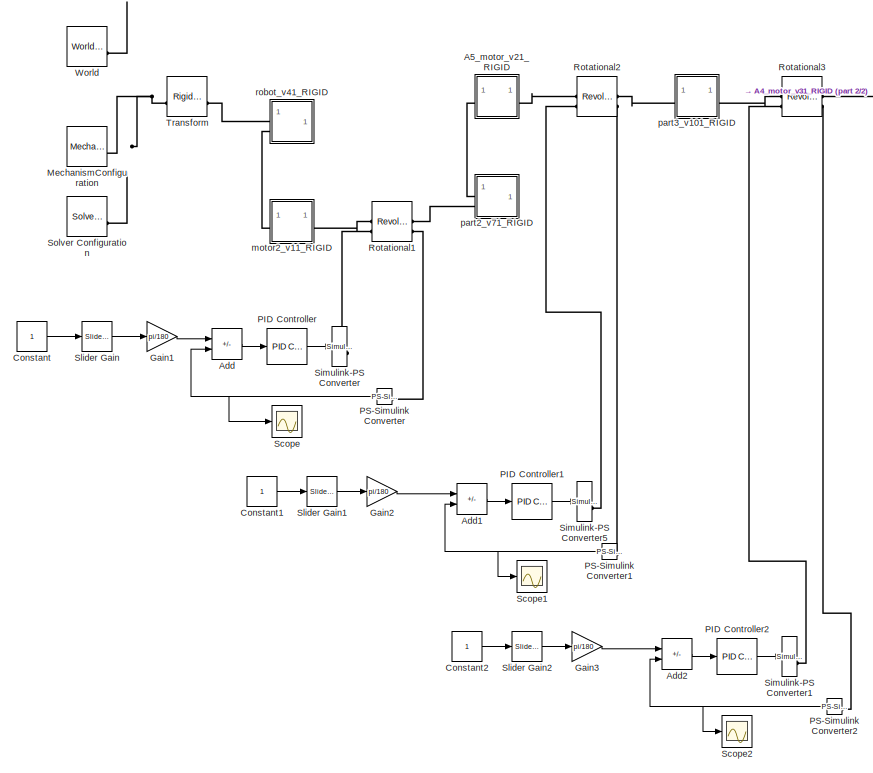
[diagram: root canvas - part 1/2, left side, full height]
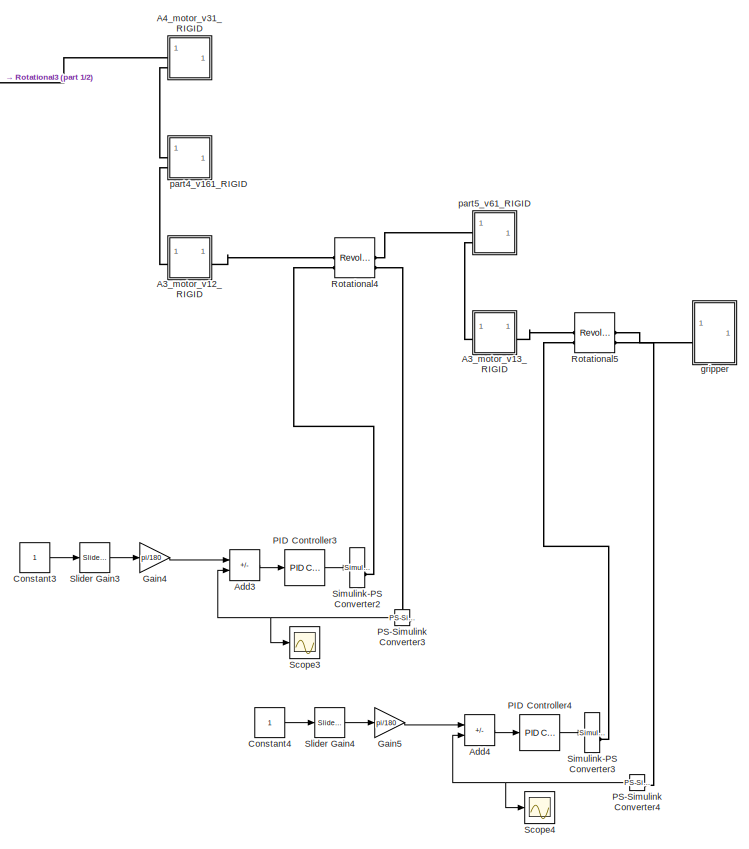
[diagram: root canvas - part 2/2, right side, full height]
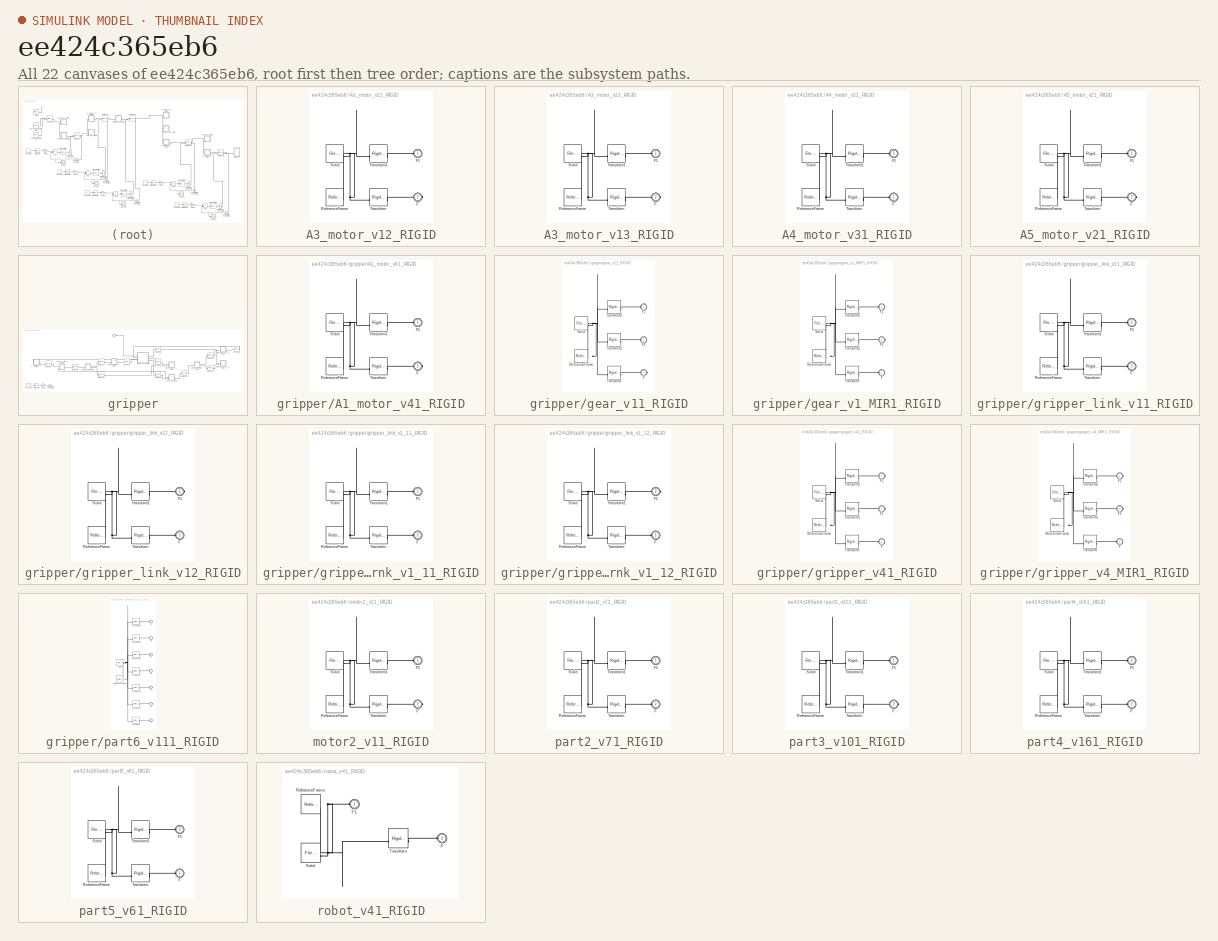
[diagram: thumbnail index - all 22 canvases of the model, root first then tree order]
MODEL slx_ee424c365eb6
KIND model
CONFIG AbsTol = auto
CONFIG EnableMultiTasking = off
CONFIG FixedStep = auto
CONFIG MaxStep = auto
CONFIG MinStep = auto
CONFIG RelTol = 1e-3
CONFIG SampleTimeConstraint = Unconstrained
CONFIG SolverName = VariableStepAuto
CONFIG StartFcn = 1
CONFIG StartTime = 0.0
CONFIG StopTime = inf
WORKSPACE source: external: MATLAB File  (data not in archive)
BLOCK [SubSystem] A3_motor_v12_RIGID
BLOCK [PMIOPort] A3_motor_v12_RIGID/F
  Port = 2
  Side = Right
BLOCK [PMIOPort] A3_motor_v12_RIGID/F1
  Side = Left
BLOCK [Reference] A3_motor_v12_RIGID/ReferenceFrame  REF=sm_lib/Frames and
Transforms/Reference
Frame
  SourceBlock = sm_lib/Frames and\nTransforms/Reference\nFrame
  SourceType = Reference\nFrame
BLOCK [Reference] A3_motor_v12_RIGID/Solid  REF=sm_lib/Body Elements/File Solid
  SourceBlock = sm_lib/Body Elements/File Solid
  SourceType = File Solid
BLOCK [Reference] A3_motor_v12_RIGID/Transform  REF=sm_lib/Frames and
Transforms/Rigid
Transform
  SourceBlock = sm_lib/Frames and\nTransforms/Rigid\nTransform
  SourceType = Rigid\nTransform
BLOCK [Reference] A3_motor_v12_RIGID/Transform1  REF=sm_lib/Frames and
Transforms/Rigid
Transform
  SourceBlock = sm_lib/Frames and\nTransforms/Rigid\nTransform
  SourceType = Rigid\nTransform
BLOCK [SubSystem] A3_motor_v13_RIGID
BLOCK [PMIOPort] A3_motor_v13_RIGID/F
  Port = 2
  Side = Right
BLOCK [PMIOPort] A3_motor_v13_RIGID/F1
  Side = Left
BLOCK [Reference] A3_motor_v13_RIGID/ReferenceFrame  REF=sm_lib/Frames and
Transforms/Reference
Frame
  SourceBlock = sm_lib/Frames and\nTransforms/Reference\nFrame
  SourceType = Reference\nFrame
BLOCK [Reference] A3_motor_v13_RIGID/Solid  REF=sm_lib/Body Elements/File Solid
  SourceBlock = sm_lib/Body Elements/File Solid
  SourceType = File Solid
BLOCK [Reference] A3_motor_v13_RIGID/Transform  REF=sm_lib/Frames and
Transforms/Rigid
Transform
  SourceBlock = sm_lib/Frames and\nTransforms/Rigid\nTransform
  SourceType = Rigid\nTransform
BLOCK [Reference] A3_motor_v13_RIGID/Transform1  REF=sm_lib/Frames and
Transforms/Rigid
Transform
  SourceBlock = sm_lib/Frames and\nTransforms/Rigid\nTransform
  SourceType = Rigid\nTransform
BLOCK [SubSystem] A4_motor_v31_RIGID
BLOCK [PMIOPort] A4_motor_v31_RIGID/F
  Side = Left
BLOCK [PMIOPort] A4_motor_v31_RIGID/F1
  Port = 2
  Side = Left
BLOCK [Reference] A4_motor_v31_RIGID/ReferenceFrame  REF=sm_lib/Frames and
Transforms/Reference
Frame
  SourceBlock = sm_lib/Frames and\nTransforms/Reference\nFrame
  SourceType = Reference\nFrame
BLOCK [Reference] A4_motor_v31_RIGID/Solid  REF=sm_lib/Body Elements/File Solid
  SourceBlock = sm_lib/Body Elements/File Solid
  SourceType = File Solid
BLOCK [Reference] A4_motor_v31_RIGID/Transform  REF=sm_lib/Frames and
Transforms/Rigid
Transform
  SourceBlock = sm_lib/Frames and\nTransforms/Rigid\nTransform
  SourceType = Rigid\nTransform
BLOCK [Reference] A4_motor_v31_RIGID/Transform1  REF=sm_lib/Frames and
Transforms/Rigid
Transform
  SourceBlock = sm_lib/Frames and\nTransforms/Rigid\nTransform
  SourceType = Rigid\nTransform
BLOCK [SubSystem] A5_motor_v21_RIGID
BLOCK [PMIOPort] A5_motor_v21_RIGID/F
  Port = 2
  Side = Right
BLOCK [PMIOPort] A5_motor_v21_RIGID/F1
  Side = Left
BLOCK [Reference] A5_motor_v21_RIGID/ReferenceFrame  REF=sm_lib/Frames and
Transforms/Reference
Frame
  SourceBlock = sm_lib/Frames and\nTransforms/Reference\nFrame
  SourceType = Reference\nFrame
BLOCK [Reference] A5_motor_v21_RIGID/Solid  REF=sm_lib/Body Elements/File Solid
  SourceBlock = sm_lib/Body Elements/File Solid
  SourceType = File Solid
BLOCK [Reference] A5_motor_v21_RIGID/Transform  REF=sm_lib/Frames and
Transforms/Rigid
Transform
  SourceBlock = sm_lib/Frames and\nTransforms/Rigid\nTransform
  SourceType = Rigid\nTransform
BLOCK [Reference] A5_motor_v21_RIGID/Transform1  REF=sm_lib/Frames and
Transforms/Rigid
Transform
  SourceBlock = sm_lib/Frames and\nTransforms/Rigid\nTransform
  SourceType = Rigid\nTransform
BLOCK [Sum] Add
  IconShape = rectangular
  Inputs = +-
BLOCK [Sum] Add1
  IconShape = rectangular
  Inputs = +-
BLOCK [Sum] Add2
  IconShape = rectangular
  Inputs = +-
BLOCK [Sum] Add3
  IconShape = rectangular
  Inputs = +-
BLOCK [Sum] Add4
  IconShape = rectangular
  Inputs = +-
BLOCK [Constant] Constant
BLOCK [Constant] Constant1
BLOCK [Constant] Constant2
BLOCK [Constant] Constant3
BLOCK [Constant] Constant4
BLOCK [Gain] Gain1
  Gain = pi/180
BLOCK [Gain] Gain2
  Gain = pi/180
BLOCK [Gain] Gain3
  Gain = pi/180
BLOCK [Gain] Gain4
  Gain = pi/180
BLOCK [Gain] Gain5
  Gain = pi/180
BLOCK [Reference] MechanismConfiguration  REF=sm_lib/Utilities/Mechanism
Configuration
  SourceBlock = sm_lib/Utilities/Mechanism\nConfiguration
  SourceType = Mechanism\nConfiguration
BLOCK [Reference] PID Controller  REF=slpidlib/PID Controller
  LibrarySourceBlock = simulink/Continuous/PID Controller
  SourceBlock = slpidlib/PID Controller
  SourceType = PID 1dof
BLOCK [Reference] PID Controller1  REF=slpidlib/PID Controller
  LibrarySourceBlock = simulink/Continuous/PID Controller
  SourceBlock = slpidlib/PID Controller
  SourceType = PID 1dof
BLOCK [Reference] PID Controller2  REF=slpidlib/PID Controller
  LibrarySourceBlock = simulink/Continuous/PID Controller
  SourceBlock = slpidlib/PID Controller
  SourceType = PID 1dof
BLOCK [Reference] PID Controller3  REF=slpidlib/PID Controller
  LibrarySourceBlock = simulink/Continuous/PID Controller
  SourceBlock = slpidlib/PID Controller
  SourceType = PID 1dof
BLOCK [Reference] PID Controller4  REF=slpidlib/PID Controller
  LibrarySourceBlock = simulink/Continuous/PID Controller
  SourceBlock = slpidlib/PID Controller
  SourceType = PID 1dof
BLOCK [Reference] PS-Simulink Converter  REF=nesl_utility/PS-Simulink
Converter
  SourceBlock = nesl_utility/PS-Simulink\nConverter
  SourceType = PS-Simulink\nConverter
BLOCK [Reference] PS-Simulink Converter1  REF=nesl_utility/PS-Simulink
Converter
  SourceBlock = nesl_utility/PS-Simulink\nConverter
  SourceType = PS-Simulink\nConverter
BLOCK [Reference] PS-Simulink Converter2  REF=nesl_utility/PS-Simulink
Converter
  SourceBlock = nesl_utility/PS-Simulink\nConverter
  SourceType = PS-Simulink\nConverter
BLOCK [Reference] PS-Simulink Converter3  REF=nesl_utility/PS-Simulink
Converter
  SourceBlock = nesl_utility/PS-Simulink\nConverter
  SourceType = PS-Simulink\nConverter
BLOCK [Reference] PS-Simulink Converter4  REF=nesl_utility/PS-Simulink
Converter
  SourceBlock = nesl_utility/PS-Simulink\nConverter
  SourceType = PS-Simulink\nConverter
BLOCK [Reference] Rotational1  REF=sm_lib/Joints/Revolute Joint
  SourceBlock = sm_lib/Joints/Revolute Joint
  SourceType = Revolute Joint
BLOCK [Reference] Rotational2  REF=sm_lib/Joints/Revolute Joint
  SourceBlock = sm_lib/Joints/Revolute Joint
  SourceType = Revolute Joint
BLOCK [Reference] Rotational3  REF=sm_lib/Joints/Revolute Joint
  SourceBlock = sm_lib/Joints/Revolute Joint
  SourceType = Revolute Joint
BLOCK [Reference] Rotational4  REF=sm_lib/Joints/Revolute Joint
  SourceBlock = sm_lib/Joints/Revolute Joint
  SourceType = Revolute Joint
BLOCK [Reference] Rotational5  REF=sm_lib/Joints/Revolute Joint
  SourceBlock = sm_lib/Joints/Revolute Joint
  SourceType = Revolute Joint
BLOCK [Scope] Scope
  Floating = off
  NumInputPorts = 1
  ScopeSpecificationString = Simulink.scopes.TimeScopeBlockCfg('CurrentConfiguration', extmgr.ConfigurationSet(extmgr.Configuration('Core','General UI',true),extmgr.Configuration('Core','Source UI',true),extmgr.Configuration('Sources','WiredSimulink',true),extmgr.Configuration('Visuals','Time Domain',true,'SerializedDisplays',{struct('MinYLimReal','0.872665','MaxYLimReal','0.87274','YLabelReal','','MinYLimMag','0.872665','Max...<+1398ch>
BLOCK [Scope] Scope1
  Floating = off
  NumInputPorts = 1
  ScopeSpecificationString = Simulink.scopes.TimeScopeBlockCfg('CurrentConfiguration', extmgr.ConfigurationSet(extmgr.Configuration('Core','General UI',true),extmgr.Configuration('Core','Source UI',true),extmgr.Configuration('Sources','WiredSimulink',true,'DataLoggingVariableName','ScopeData1'),extmgr.Configuration('Visuals','Time Domain',true,'SerializedDisplays',{struct('MinYLimReal','-0.29452','MaxYLimReal','2.65066','YLab...<+1449ch>
BLOCK [Scope] Scope2
  Floating = off
  NumInputPorts = 1
  ScopeSpecificationString = Simulink.scopes.TimeScopeBlockCfg('CurrentConfiguration', extmgr.ConfigurationSet(extmgr.Configuration('Core','General UI',true),extmgr.Configuration('Core','Source UI',true),extmgr.Configuration('Sources','WiredSimulink',true,'DataLoggingVariableName','ScopeData2'),extmgr.Configuration('Visuals','Time Domain',true,'SerializedDisplays',{struct('MinYLimReal','3.1415906','MaxYLimReal','3.1415925','Y...<+1476ch>
BLOCK [Scope] Scope3
  Floating = off
  NumInputPorts = 1
  ScopeSpecificationString = Simulink.scopes.TimeScopeBlockCfg('CurrentConfiguration', extmgr.ConfigurationSet(extmgr.Configuration('Core','General UI',true),extmgr.Configuration('Core','Source UI',true),extmgr.Configuration('Sources','WiredSimulink',true,'DataLoggingVariableName','ScopeData3'),extmgr.Configuration('Visuals','Time Domain',true,'SerializedDisplays',{struct('MinYLimReal','0.872665','MaxYLimReal','0.87274','YLab...<+1437ch>
BLOCK [Scope] Scope4
  Floating = off
  NumInputPorts = 1
  ScopeSpecificationString = Simulink.scopes.TimeScopeBlockCfg('CurrentConfiguration', extmgr.ConfigurationSet(extmgr.Configuration('Core','General UI',true),extmgr.Configuration('Core','Source UI',true),extmgr.Configuration('Sources','WiredSimulink',true,'DataLoggingVariableName','ScopeData4'),extmgr.Configuration('Visuals','Time Domain',true,'SerializedDisplays',{struct('MinYLimReal','0.872665','MaxYLimReal','0.87274','YLab...<+1437ch>
BLOCK [Reference] Simulink-PS Converter  REF=nesl_utility/Simulink-PS
Converter
  SourceBlock = nesl_utility/Simulink-PS\nConverter
  SourceType = Simulink-PS\nConverter
BLOCK [Reference] Simulink-PS Converter1  REF=nesl_utility/Simulink-PS
Converter
  SourceBlock = nesl_utility/Simulink-PS\nConverter
  SourceType = Simulink-PS\nConverter
BLOCK [Reference] Simulink-PS Converter2  REF=nesl_utility/Simulink-PS
Converter
  SourceBlock = nesl_utility/Simulink-PS\nConverter
  SourceType = Simulink-PS\nConverter
BLOCK [Reference] Simulink-PS Converter3  REF=nesl_utility/Simulink-PS
Converter
  SourceBlock = nesl_utility/Simulink-PS\nConverter
  SourceType = Simulink-PS\nConverter
BLOCK [Reference] Simulink-PS Converter5  REF=nesl_utility/Simulink-PS
Converter
  SourceBlock = nesl_utility/Simulink-PS\nConverter
  SourceType = Simulink-PS\nConverter
BLOCK [Reference] Slider Gain  REF=simulink/Math
Operations/Slider
Gain
  SourceBlock = simulink/Math\nOperations/Slider\nGain
  SourceType = Slider Gain
BLOCK [Reference] Slider Gain1  REF=simulink/Math
Operations/Slider
Gain
  SourceBlock = simulink/Math\nOperations/Slider\nGain
  SourceType = Slider Gain
BLOCK [Reference] Slider Gain2  REF=simulink/Math
Operations/Slider
Gain
  SourceBlock = simulink/Math\nOperations/Slider\nGain
  SourceType = Slider Gain
BLOCK [Reference] Slider Gain3  REF=simulink/Math
Operations/Slider
Gain
  SourceBlock = simulink/Math\nOperations/Slider\nGain
  SourceType = Slider Gain
BLOCK [Reference] Slider Gain4  REF=simulink/Math
Operations/Slider
Gain
  SourceBlock = simulink/Math\nOperations/Slider\nGain
  SourceType = Slider Gain
BLOCK [Reference] Solver Configuration  REF=nesl_utility/Solver
Configuration
  SourceBlock = nesl_utility/Solver\nConfiguration
  SourceType = Solver\nConfiguration
BLOCK [Reference] Transform  REF=sm_lib/Frames and
Transforms/Rigid
Transform
  SourceBlock = sm_lib/Frames and\nTransforms/Rigid\nTransform
  SourceType = Rigid\nTransform
BLOCK [Reference] World  REF=sm_lib/Frames and
Transforms/World Frame
  SourceBlock = sm_lib/Frames and\nTransforms/World Frame
  SourceType = World Frame
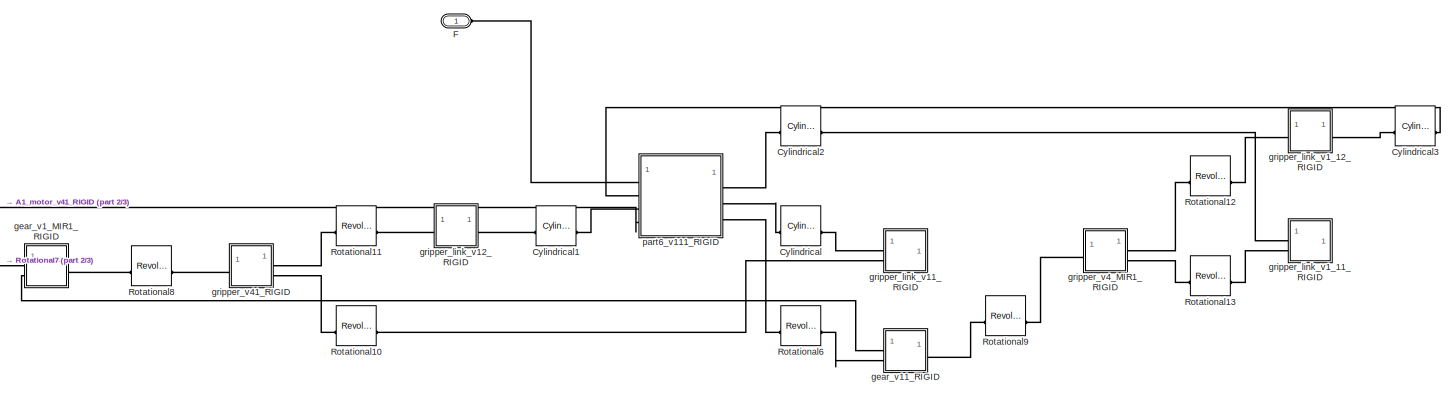
[diagram: gripper - part 1/3, most of the canvas]
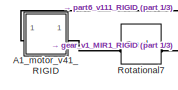
[diagram: gripper - part 2/3, middle left region]
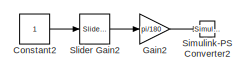
[diagram: gripper - part 3/3, bottom left region]
BLOCK [SubSystem] gripper
BLOCK [SubSystem] gripper/A1_motor_v41_RIGID
BLOCK [PMIOPort] gripper/A1_motor_v41_RIGID/F
  Port = 2
  Side = Right
BLOCK [PMIOPort] gripper/A1_motor_v41_RIGID/F1
  Side = Left
BLOCK [Reference] gripper/A1_motor_v41_RIGID/ReferenceFrame  REF=sm_lib/Frames and
Transforms/Reference
Frame
  SourceBlock = sm_lib/Frames and\nTransforms/Reference\nFrame
  SourceType = Reference\nFrame
BLOCK [Reference] gripper/A1_motor_v41_RIGID/Solid  REF=sm_lib/Body Elements/File Solid
  SourceBlock = sm_lib/Body Elements/File Solid
  SourceType = File Solid
BLOCK [Reference] gripper/A1_motor_v41_RIGID/Transform  REF=sm_lib/Frames and
Transforms/Rigid
Transform
  SourceBlock = sm_lib/Frames and\nTransforms/Rigid\nTransform
  SourceType = Rigid\nTransform
BLOCK [Reference] gripper/A1_motor_v41_RIGID/Transform1  REF=sm_lib/Frames and
Transforms/Rigid
Transform
  SourceBlock = sm_lib/Frames and\nTransforms/Rigid\nTransform
  SourceType = Rigid\nTransform
BLOCK [Constant] gripper/Constant2
  Commented = on
BLOCK [Reference] gripper/Cylindrical  REF=sm_lib/Joints/Cylindrical
Joint
  SourceBlock = sm_lib/Joints/Cylindrical\nJoint
  SourceType = Cylindrical\nJoint
BLOCK [Reference] gripper/Cylindrical1  REF=sm_lib/Joints/Cylindrical
Joint
  SourceBlock = sm_lib/Joints/Cylindrical\nJoint
  SourceType = Cylindrical\nJoint
BLOCK [Reference] gripper/Cylindrical2  REF=sm_lib/Joints/Cylindrical
Joint
  SourceBlock = sm_lib/Joints/Cylindrical\nJoint
  SourceType = Cylindrical\nJoint
BLOCK [Reference] gripper/Cylindrical3  REF=sm_lib/Joints/Cylindrical
Joint
  SourceBlock = sm_lib/Joints/Cylindrical\nJoint
  SourceType = Cylindrical\nJoint
BLOCK [PMIOPort] gripper/F
  Side = Left
BLOCK [Gain] gripper/Gain2
  Commented = on
  Gain = pi/180
BLOCK [Reference] gripper/Rotational10  REF=sm_lib/Joints/Revolute Joint
  SourceBlock = sm_lib/Joints/Revolute Joint
  SourceType = Revolute Joint
BLOCK [Reference] gripper/Rotational11  REF=sm_lib/Joints/Revolute Joint
  SourceBlock = sm_lib/Joints/Revolute Joint
  SourceType = Revolute Joint
BLOCK [Reference] gripper/Rotational12  REF=sm_lib/Joints/Revolute Joint
  SourceBlock = sm_lib/Joints/Revolute Joint
  SourceType = Revolute Joint
BLOCK [Reference] gripper/Rotational13  REF=sm_lib/Joints/Revolute Joint
  SourceBlock = sm_lib/Joints/Revolute Joint
  SourceType = Revolute Joint
BLOCK [Reference] gripper/Rotational6  REF=sm_lib/Joints/Revolute Joint
  SourceBlock = sm_lib/Joints/Revolute Joint
  SourceType = Revolute Joint
BLOCK [Reference] gripper/Rotational7  REF=sm_lib/Joints/Revolute Joint
  SourceBlock = sm_lib/Joints/Revolute Joint
  SourceType = Revolute Joint
BLOCK [Reference] gripper/Rotational8  REF=sm_lib/Joints/Revolute Joint
  SourceBlock = sm_lib/Joints/Revolute Joint
  SourceType = Revolute Joint
BLOCK [Reference] gripper/Rotational9  REF=sm_lib/Joints/Revolute Joint
  SourceBlock = sm_lib/Joints/Revolute Joint
  SourceType = Revolute Joint
BLOCK [Reference] gripper/Simulink-PS Converter2  REF=nesl_utility/Simulink-PS
Converter
  Commented = on
  SourceBlock = nesl_utility/Simulink-PS\nConverter
  SourceType = Simulink-PS\nConverter
BLOCK [Reference] gripper/Slider Gain2  REF=simulink/Math
Operations/Slider
Gain
  Commented = on
  SourceBlock = simulink/Math\nOperations/Slider\nGain
  SourceType = Slider Gain
BLOCK [SubSystem] gripper/gear_v11_RIGID
BLOCK [PMIOPort] gripper/gear_v11_RIGID/F
  Port = 3
  Side = Right
BLOCK [PMIOPort] gripper/gear_v11_RIGID/F1
  Port = 2
  Side = Left
BLOCK [PMIOPort] gripper/gear_v11_RIGID/F2
  Side = Left
BLOCK [Reference] gripper/gear_v11_RIGID/ReferenceFrame  REF=sm_lib/Frames and
Transforms/Reference
Frame
  SourceBlock = sm_lib/Frames and\nTransforms/Reference\nFrame
  SourceType = Reference\nFrame
BLOCK [Reference] gripper/gear_v11_RIGID/Solid  REF=sm_lib/Body Elements/File Solid
  SourceBlock = sm_lib/Body Elements/File Solid
  SourceType = File Solid
BLOCK [Reference] gripper/gear_v11_RIGID/Transform  REF=sm_lib/Frames and
Transforms/Rigid
Transform
  SourceBlock = sm_lib/Frames and\nTransforms/Rigid\nTransform
  SourceType = Rigid\nTransform
BLOCK [Reference] gripper/gear_v11_RIGID/Transform1  REF=sm_lib/Frames and
Transforms/Rigid
Transform
  SourceBlock = sm_lib/Frames and\nTransforms/Rigid\nTransform
  SourceType = Rigid\nTransform
BLOCK [Reference] gripper/gear_v11_RIGID/Transform2  REF=sm_lib/Frames and
Transforms/Rigid
Transform
  SourceBlock = sm_lib/Frames and\nTransforms/Rigid\nTransform
  SourceType = Rigid\nTransform
BLOCK [SubSystem] gripper/gear_v1_MIR1_RIGID
BLOCK [PMIOPort] gripper/gear_v1_MIR1_RIGID/F
  Side = Left
BLOCK [PMIOPort] gripper/gear_v1_MIR1_RIGID/F1
  Port = 3
  Side = Right
BLOCK [PMIOPort] gripper/gear_v1_MIR1_RIGID/F2
  Port = 2
  Side = Left
BLOCK [Reference] gripper/gear_v1_MIR1_RIGID/ReferenceFrame  REF=sm_lib/Frames and
Transforms/Reference
Frame
  SourceBlock = sm_lib/Frames and\nTransforms/Reference\nFrame
  SourceType = Reference\nFrame
BLOCK [Reference] gripper/gear_v1_MIR1_RIGID/Solid  REF=sm_lib/Body Elements/File Solid
  SourceBlock = sm_lib/Body Elements/File Solid
  SourceType = File Solid
BLOCK [Reference] gripper/gear_v1_MIR1_RIGID/Transform  REF=sm_lib/Frames and
Transforms/Rigid
Transform
  SourceBlock = sm_lib/Frames and\nTransforms/Rigid\nTransform
  SourceType = Rigid\nTransform
BLOCK [Reference] gripper/gear_v1_MIR1_RIGID/Transform1  REF=sm_lib/Frames and
Transforms/Rigid
Transform
  SourceBlock = sm_lib/Frames and\nTransforms/Rigid\nTransform
  SourceType = Rigid\nTransform
BLOCK [Reference] gripper/gear_v1_MIR1_RIGID/Transform2  REF=sm_lib/Frames and
Transforms/Rigid
Transform
  SourceBlock = sm_lib/Frames and\nTransforms/Rigid\nTransform
  SourceType = Rigid\nTransform
BLOCK [SubSystem] gripper/gripper_link_v11_RIGID
BLOCK [PMIOPort] gripper/gripper_link_v11_RIGID/F
  Port = 2
  Side = Left
BLOCK [PMIOPort] gripper/gripper_link_v11_RIGID/F1
  Side = Left
BLOCK [Reference] gripper/gripper_link_v11_RIGID/ReferenceFrame  REF=sm_lib/Frames and
Transforms/Reference
Frame
  SourceBlock = sm_lib/Frames and\nTransforms/Reference\nFrame
  SourceType = Reference\nFrame
BLOCK [Reference] gripper/gripper_link_v11_RIGID/Solid  REF=sm_lib/Body Elements/File Solid
  SourceBlock = sm_lib/Body Elements/File Solid
  SourceType = File Solid
BLOCK [Reference] gripper/gripper_link_v11_RIGID/Transform  REF=sm_lib/Frames and
Transforms/Rigid
Transform
  SourceBlock = sm_lib/Frames and\nTransforms/Rigid\nTransform
  SourceType = Rigid\nTransform
BLOCK [Reference] gripper/gripper_link_v11_RIGID/Transform1  REF=sm_lib/Frames and
Transforms/Rigid
Transform
  SourceBlock = sm_lib/Frames and\nTransforms/Rigid\nTransform
  SourceType = Rigid\nTransform
BLOCK [SubSystem] gripper/gripper_link_v12_RIGID
BLOCK [PMIOPort] gripper/gripper_link_v12_RIGID/F
  Side = Left
BLOCK [PMIOPort] gripper/gripper_link_v12_RIGID/F1
  Port = 2
  Side = Right
BLOCK [Reference] gripper/gripper_link_v12_RIGID/ReferenceFrame  REF=sm_lib/Frames and
Transforms/Reference
Frame
  SourceBlock = sm_lib/Frames and\nTransforms/Reference\nFrame
  SourceType = Reference\nFrame
BLOCK [Reference] gripper/gripper_link_v12_RIGID/Solid  REF=sm_lib/Body Elements/File Solid
  SourceBlock = sm_lib/Body Elements/File Solid
  SourceType = File Solid
BLOCK [Reference] gripper/gripper_link_v12_RIGID/Transform  REF=sm_lib/Frames and
Transforms/Rigid
Transform
  SourceBlock = sm_lib/Frames and\nTransforms/Rigid\nTransform
  SourceType = Rigid\nTransform
BLOCK [Reference] gripper/gripper_link_v12_RIGID/Transform1  REF=sm_lib/Frames and
Transforms/Rigid
Transform
  SourceBlock = sm_lib/Frames and\nTransforms/Rigid\nTransform
  SourceType = Rigid\nTransform
BLOCK [SubSystem] gripper/gripper_link_v1_11_RIGID
BLOCK [PMIOPort] gripper/gripper_link_v1_11_RIGID/F
  Port = 2
  Side = Left
BLOCK [PMIOPort] gripper/gripper_link_v1_11_RIGID/F1
  Side = Left
BLOCK [Reference] gripper/gripper_link_v1_11_RIGID/ReferenceFrame  REF=sm_lib/Frames and
Transforms/Reference
Frame
  SourceBlock = sm_lib/Frames and\nTransforms/Reference\nFrame
  SourceType = Reference\nFrame
BLOCK [Reference] gripper/gripper_link_v1_11_RIGID/Solid  REF=sm_lib/Body Elements/File Solid
  SourceBlock = sm_lib/Body Elements/File Solid
  SourceType = File Solid
BLOCK [Reference] gripper/gripper_link_v1_11_RIGID/Transform  REF=sm_lib/Frames and
Transforms/Rigid
Transform
  SourceBlock = sm_lib/Frames and\nTransforms/Rigid\nTransform
  SourceType = Rigid\nTransform
BLOCK [Reference] gripper/gripper_link_v1_11_RIGID/Transform1  REF=sm_lib/Frames and
Transforms/Rigid
Transform
  SourceBlock = sm_lib/Frames and\nTransforms/Rigid\nTransform
  SourceType = Rigid\nTransform
BLOCK [SubSystem] gripper/gripper_link_v1_12_RIGID
BLOCK [PMIOPort] gripper/gripper_link_v1_12_RIGID/F
  Side = Left
BLOCK [PMIOPort] gripper/gripper_link_v1_12_RIGID/F1
  Port = 2
  Side = Right
BLOCK [Reference] gripper/gripper_link_v1_12_RIGID/ReferenceFrame  REF=sm_lib/Frames and
Transforms/Reference
Frame
  SourceBlock = sm_lib/Frames and\nTransforms/Reference\nFrame
  SourceType = Reference\nFrame
BLOCK [Reference] gripper/gripper_link_v1_12_RIGID/Solid  REF=sm_lib/Body Elements/File Solid
  SourceBlock = sm_lib/Body Elements/File Solid
  SourceType = File Solid
BLOCK [Reference] gripper/gripper_link_v1_12_RIGID/Transform  REF=sm_lib/Frames and
Transforms/Rigid
Transform
  SourceBlock = sm_lib/Frames and\nTransforms/Rigid\nTransform
  SourceType = Rigid\nTransform
BLOCK [Reference] gripper/gripper_link_v1_12_RIGID/Transform1  REF=sm_lib/Frames and
Transforms/Rigid
Transform
  SourceBlock = sm_lib/Frames and\nTransforms/Rigid\nTransform
  SourceType = Rigid\nTransform
BLOCK [SubSystem] gripper/gripper_v41_RIGID
BLOCK [PMIOPort] gripper/gripper_v41_RIGID/F
  Side = Left
BLOCK [PMIOPort] gripper/gripper_v41_RIGID/F1
  Port = 3
  Side = Right
BLOCK [PMIOPort] gripper/gripper_v41_RIGID/F2
  Port = 2
  Side = Right
BLOCK [Reference] gripper/gripper_v41_RIGID/ReferenceFrame  REF=sm_lib/Frames and
Transforms/Reference
Frame
  SourceBlock = sm_lib/Frames and\nTransforms/Reference\nFrame
  SourceType = Reference\nFrame
BLOCK [Reference] gripper/gripper_v41_RIGID/Solid  REF=sm_lib/Body Elements/File Solid
  SourceBlock = sm_lib/Body Elements/File Solid
  SourceType = File Solid
BLOCK [Reference] gripper/gripper_v41_RIGID/Transform  REF=sm_lib/Frames and
Transforms/Rigid
Transform
  SourceBlock = sm_lib/Frames and\nTransforms/Rigid\nTransform
  SourceType = Rigid\nTransform
BLOCK [Reference] gripper/gripper_v41_RIGID/Transform1  REF=sm_lib/Frames and
Transforms/Rigid
Transform
  SourceBlock = sm_lib/Frames and\nTransforms/Rigid\nTransform
  SourceType = Rigid\nTransform
BLOCK [Reference] gripper/gripper_v41_RIGID/Transform2  REF=sm_lib/Frames and
Transforms/Rigid
Transform
  SourceBlock = sm_lib/Frames and\nTransforms/Rigid\nTransform
  SourceType = Rigid\nTransform
BLOCK [SubSystem] gripper/gripper_v4_MIR1_RIGID
BLOCK [PMIOPort] gripper/gripper_v4_MIR1_RIGID/F
  Side = Left
BLOCK [PMIOPort] gripper/gripper_v4_MIR1_RIGID/F1
  Port = 3
  Side = Right
BLOCK [PMIOPort] gripper/gripper_v4_MIR1_RIGID/F2
  Port = 2
  Side = Right
BLOCK [Reference] gripper/gripper_v4_MIR1_RIGID/ReferenceFrame  REF=sm_lib/Frames and
Transforms/Reference
Frame
  SourceBlock = sm_lib/Frames and\nTransforms/Reference\nFrame
  SourceType = Reference\nFrame
BLOCK [Reference] gripper/gripper_v4_MIR1_RIGID/Solid  REF=sm_lib/Body Elements/File Solid
  SourceBlock = sm_lib/Body Elements/File Solid
  SourceType = File Solid
BLOCK [Reference] gripper/gripper_v4_MIR1_RIGID/Transform  REF=sm_lib/Frames and
Transforms/Rigid
Transform
  SourceBlock = sm_lib/Frames and\nTransforms/Rigid\nTransform
  SourceType = Rigid\nTransform
BLOCK [Reference] gripper/gripper_v4_MIR1_RIGID/Transform1  REF=sm_lib/Frames and
Transforms/Rigid
Transform
  SourceBlock = sm_lib/Frames and\nTransforms/Rigid\nTransform
  SourceType = Rigid\nTransform
BLOCK [Reference] gripper/gripper_v4_MIR1_RIGID/Transform2  REF=sm_lib/Frames and
Transforms/Rigid
Transform
  SourceBlock = sm_lib/Frames and\nTransforms/Rigid\nTransform
  SourceType = Rigid\nTransform
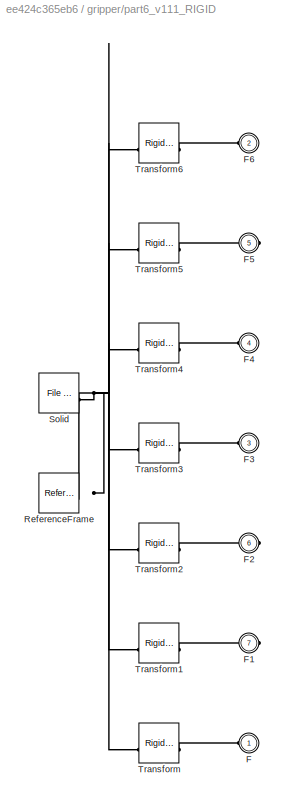
BLOCK [SubSystem] gripper/part6_v111_RIGID
BLOCK [PMIOPort] gripper/part6_v111_RIGID/F
  Side = Left
BLOCK [PMIOPort] gripper/part6_v111_RIGID/F1
  Port = 7
  Side = Right
BLOCK [PMIOPort] gripper/part6_v111_RIGID/F2
  Port = 6
  Side = Right
BLOCK [PMIOPort] gripper/part6_v111_RIGID/F3
  Port = 3
  Side = Left
BLOCK [PMIOPort] gripper/part6_v111_RIGID/F4
  Port = 4
  Side = Left
BLOCK [PMIOPort] gripper/part6_v111_RIGID/F5
  Port = 5
  Side = Right
BLOCK [PMIOPort] gripper/part6_v111_RIGID/F6
  Port = 2
  Side = Left
BLOCK [Reference] gripper/part6_v111_RIGID/ReferenceFrame  REF=sm_lib/Frames and
Transforms/Reference
Frame
  SourceBlock = sm_lib/Frames and\nTransforms/Reference\nFrame
  SourceType = Reference\nFrame
BLOCK [Reference] gripper/part6_v111_RIGID/Solid  REF=sm_lib/Body Elements/File Solid
  SourceBlock = sm_lib/Body Elements/File Solid
  SourceType = File Solid
BLOCK [Reference] gripper/part6_v111_RIGID/Transform  REF=sm_lib/Frames and
Transforms/Rigid
Transform
  SourceBlock = sm_lib/Frames and\nTransforms/Rigid\nTransform
  SourceType = Rigid\nTransform
BLOCK [Reference] gripper/part6_v111_RIGID/Transform1  REF=sm_lib/Frames and
Transforms/Rigid
Transform
  SourceBlock = sm_lib/Frames and\nTransforms/Rigid\nTransform
  SourceType = Rigid\nTransform
BLOCK [Reference] gripper/part6_v111_RIGID/Transform2  REF=sm_lib/Frames and
Transforms/Rigid
Transform
  SourceBlock = sm_lib/Frames and\nTransforms/Rigid\nTransform
  SourceType = Rigid\nTransform
BLOCK [Reference] gripper/part6_v111_RIGID/Transform3  REF=sm_lib/Frames and
Transforms/Rigid
Transform
  SourceBlock = sm_lib/Frames and\nTransforms/Rigid\nTransform
  SourceType = Rigid\nTransform
BLOCK [Reference] gripper/part6_v111_RIGID/Transform4  REF=sm_lib/Frames and
Transforms/Rigid
Transform
  SourceBlock = sm_lib/Frames and\nTransforms/Rigid\nTransform
  SourceType = Rigid\nTransform
BLOCK [Reference] gripper/part6_v111_RIGID/Transform5  REF=sm_lib/Frames and
Transforms/Rigid
Transform
  SourceBlock = sm_lib/Frames and\nTransforms/Rigid\nTransform
  SourceType = Rigid\nTransform
BLOCK [Reference] gripper/part6_v111_RIGID/Transform6  REF=sm_lib/Frames and
Transforms/Rigid
Transform
  SourceBlock = sm_lib/Frames and\nTransforms/Rigid\nTransform
  SourceType = Rigid\nTransform
BLOCK [SubSystem] motor2_v11_RIGID
BLOCK [PMIOPort] motor2_v11_RIGID/F
  Port = 2
  Side = Right
BLOCK [PMIOPort] motor2_v11_RIGID/F1
  Side = Left
BLOCK [Reference] motor2_v11_RIGID/ReferenceFrame  REF=sm_lib/Frames and
Transforms/Reference
Frame
  SourceBlock = sm_lib/Frames and\nTransforms/Reference\nFrame
  SourceType = Reference\nFrame
BLOCK [Reference] motor2_v11_RIGID/Solid  REF=sm_lib/Body Elements/File Solid
  SourceBlock = sm_lib/Body Elements/File Solid
  SourceType = File Solid
BLOCK [Reference] motor2_v11_RIGID/Transform  REF=sm_lib/Frames and
Transforms/Rigid
Transform
  SourceBlock = sm_lib/Frames and\nTransforms/Rigid\nTransform
  SourceType = Rigid\nTransform
BLOCK [Reference] motor2_v11_RIGID/Transform1  REF=sm_lib/Frames and
Transforms/Rigid
Transform
  SourceBlock = sm_lib/Frames and\nTransforms/Rigid\nTransform
  SourceType = Rigid\nTransform
BLOCK [SubSystem] part2_v71_RIGID
BLOCK [PMIOPort] part2_v71_RIGID/F
  Port = 2
  Side = Left
BLOCK [PMIOPort] part2_v71_RIGID/F1
  Side = Left
BLOCK [Reference] part2_v71_RIGID/ReferenceFrame  REF=sm_lib/Frames and
Transforms/Reference
Frame
  SourceBlock = sm_lib/Frames and\nTransforms/Reference\nFrame
  SourceType = Reference\nFrame
BLOCK [Reference] part2_v71_RIGID/Solid  REF=sm_lib/Body Elements/File Solid
  SourceBlock = sm_lib/Body Elements/File Solid
  SourceType = File Solid
BLOCK [Reference] part2_v71_RIGID/Transform  REF=sm_lib/Frames and
Transforms/Rigid
Transform
  SourceBlock = sm_lib/Frames and\nTransforms/Rigid\nTransform
  SourceType = Rigid\nTransform
BLOCK [Reference] part2_v71_RIGID/Transform1  REF=sm_lib/Frames and
Transforms/Rigid
Transform
  SourceBlock = sm_lib/Frames and\nTransforms/Rigid\nTransform
  SourceType = Rigid\nTransform
BLOCK [SubSystem] part3_v101_RIGID
BLOCK [PMIOPort] part3_v101_RIGID/F
  Port = 2
  Side = Right
BLOCK [PMIOPort] part3_v101_RIGID/F1
  Side = Left
BLOCK [Reference] part3_v101_RIGID/ReferenceFrame  REF=sm_lib/Frames and
Transforms/Reference
Frame
  SourceBlock = sm_lib/Frames and\nTransforms/Reference\nFrame
  SourceType = Reference\nFrame
BLOCK [Reference] part3_v101_RIGID/Solid  REF=sm_lib/Body Elements/File Solid
  SourceBlock = sm_lib/Body Elements/File Solid
  SourceType = File Solid
BLOCK [Reference] part3_v101_RIGID/Transform  REF=sm_lib/Frames and
Transforms/Rigid
Transform
  SourceBlock = sm_lib/Frames and\nTransforms/Rigid\nTransform
  SourceType = Rigid\nTransform
BLOCK [Reference] part3_v101_RIGID/Transform1  REF=sm_lib/Frames and
Transforms/Rigid
Transform
  SourceBlock = sm_lib/Frames and\nTransforms/Rigid\nTransform
  SourceType = Rigid\nTransform
BLOCK [SubSystem] part4_v161_RIGID
BLOCK [PMIOPort] part4_v161_RIGID/F
  Port = 2
  Side = Left
BLOCK [PMIOPort] part4_v161_RIGID/F1
  Side = Left
BLOCK [Reference] part4_v161_RIGID/ReferenceFrame  REF=sm_lib/Frames and
Transforms/Reference
Frame
  SourceBlock = sm_lib/Frames and\nTransforms/Reference\nFrame
  SourceType = Reference\nFrame
BLOCK [Reference] part4_v161_RIGID/Solid  REF=sm_lib/Body Elements/File Solid
  SourceBlock = sm_lib/Body Elements/File Solid
  SourceType = File Solid
BLOCK [Reference] part4_v161_RIGID/Transform  REF=sm_lib/Frames and
Transforms/Rigid
Transform
  SourceBlock = sm_lib/Frames and\nTransforms/Rigid\nTransform
  SourceType = Rigid\nTransform
BLOCK [Reference] part4_v161_RIGID/Transform1  REF=sm_lib/Frames and
Transforms/Rigid
Transform
  SourceBlock = sm_lib/Frames and\nTransforms/Rigid\nTransform
  SourceType = Rigid\nTransform
BLOCK [SubSystem] part5_v61_RIGID
BLOCK [PMIOPort] part5_v61_RIGID/F
  Side = Left
BLOCK [PMIOPort] part5_v61_RIGID/F1
  Port = 2
  Side = Left
BLOCK [Reference] part5_v61_RIGID/ReferenceFrame  REF=sm_lib/Frames and
Transforms/Reference
Frame
  SourceBlock = sm_lib/Frames and\nTransforms/Reference\nFrame
  SourceType = Reference\nFrame
BLOCK [Reference] part5_v61_RIGID/Solid  REF=sm_lib/Body Elements/File Solid
  SourceBlock = sm_lib/Body Elements/File Solid
  SourceType = File Solid
BLOCK [Reference] part5_v61_RIGID/Transform  REF=sm_lib/Frames and
Transforms/Rigid
Transform
  SourceBlock = sm_lib/Frames and\nTransforms/Rigid\nTransform
  SourceType = Rigid\nTransform
BLOCK [Reference] part5_v61_RIGID/Transform1  REF=sm_lib/Frames and
Transforms/Rigid
Transform
  SourceBlock = sm_lib/Frames and\nTransforms/Rigid\nTransform
  SourceType = Rigid\nTransform
BLOCK [SubSystem] robot_v41_RIGID
BLOCK [PMIOPort] robot_v41_RIGID/F
  Port = 2
  Side = Left
BLOCK [PMIOPort] robot_v41_RIGID/F1
  Side = Left
BLOCK [Reference] robot_v41_RIGID/ReferenceFrame  REF=sm_lib/Frames and
Transforms/Reference
Frame
  SourceBlock = sm_lib/Frames and\nTransforms/Reference\nFrame
  SourceType = Reference\nFrame
BLOCK [Reference] robot_v41_RIGID/Solid  REF=sm_lib/Body Elements/File Solid
  SourceBlock = sm_lib/Body Elements/File Solid
  SourceType = File Solid
BLOCK [Reference] robot_v41_RIGID/Transform  REF=sm_lib/Frames and
Transforms/Rigid
Transform
  SourceBlock = sm_lib/Frames and\nTransforms/Rigid\nTransform
  SourceType = Rigid\nTransform
LINE Add1:1 -> PID Controller1:1
LINE Add2:1 -> PID Controller2:1
LINE Add3:1 -> PID Controller3:1
LINE Add4:1 -> PID Controller4:1
LINE Add:1 -> PID Controller:1
LINE Constant1:1 -> Slider Gain1:1
LINE Constant2:1 -> Slider Gain2:1
LINE Constant3:1 -> Slider Gain3:1
LINE Constant4:1 -> Slider Gain4:1
LINE Constant:1 -> Slider Gain:1
LINE Gain1:1 -> Add:1
LINE Gain2:1 -> Add1:1
LINE Gain3:1 -> Add2:1
LINE Gain4:1 -> Add3:1
LINE Gain5:1 -> Add4:1
LINE PID Controller1:1 -> Simulink-PS Converter5:1
LINE PID Controller2:1 -> Simulink-PS Converter1:1
LINE PID Controller3:1 -> Simulink-PS Converter2:1
LINE PID Controller4:1 -> Simulink-PS Converter3:1
LINE PID Controller:1 -> Simulink-PS Converter:1
NET PS-Simulink Converter1:1 -> Add1:2, Scope1:1
NET PS-Simulink Converter2:1 -> Add2:2, Scope2:1
NET PS-Simulink Converter3:1 -> Add3:2, Scope3:1
NET PS-Simulink Converter4:1 -> Add4:2, Scope4:1
NET PS-Simulink Converter:1 -> Add:2, Scope:1
LINE Slider Gain1:1 -> Gain2:1
LINE Slider Gain2:1 -> Gain3:1
LINE Slider Gain3:1 -> Gain4:1
LINE Slider Gain4:1 -> Gain5:1
LINE Slider Gain:1 -> Gain1:1
LINE gripper/Constant2:1 -> gripper/Slider Gain2:1
LINE gripper/Gain2:1 -> gripper/Simulink-PS Converter2:1
LINE gripper/Slider Gain2:1 -> gripper/Gain2:1
PLINE A3_motor_v12_RIGID/F1:RConn1 -- A3_motor_v12_RIGID/Transform1:RConn1
PLINE A3_motor_v12_RIGID/F:RConn1 -- A3_motor_v12_RIGID/Transform:RConn1
PNET net1: A3_motor_v12_RIGID/ReferenceFrame:RConn1 -- A3_motor_v12_RIGID/Solid:RConn1 -- A3_motor_v12_RIGID/Transform1:LConn1 -- A3_motor_v12_RIGID/Transform:LConn1
PLINE A3_motor_v12_RIGID:LConn1 -- part4_v161_RIGID:LConn2
PLINE A3_motor_v12_RIGID:RConn1 -- Rotational4:LConn1
PLINE A3_motor_v13_RIGID/F1:RConn1 -- A3_motor_v13_RIGID/Transform1:RConn1
PLINE A3_motor_v13_RIGID/F:RConn1 -- A3_motor_v13_RIGID/Transform:RConn1
PNET net2: A3_motor_v13_RIGID/ReferenceFrame:RConn1 -- A3_motor_v13_RIGID/Solid:RConn1 -- A3_motor_v13_RIGID/Transform1:LConn1 -- A3_motor_v13_RIGID/Transform:LConn1
PLINE A3_motor_v13_RIGID:LConn1 -- part5_v61_RIGID:LConn2
PLINE A3_motor_v13_RIGID:RConn1 -- Rotational5:LConn1
PLINE A4_motor_v31_RIGID/F1:RConn1 -- A4_motor_v31_RIGID/Transform1:RConn1
PLINE A4_motor_v31_RIGID/F:RConn1 -- A4_motor_v31_RIGID/Transform:RConn1
PNET net3: A4_motor_v31_RIGID/ReferenceFrame:RConn1 -- A4_motor_v31_RIGID/Solid:RConn1 -- A4_motor_v31_RIGID/Transform1:LConn1 -- A4_motor_v31_RIGID/Transform:LConn1
PLINE A4_motor_v31_RIGID:LConn1 -- Rotational3:RConn1
PLINE A4_motor_v31_RIGID:LConn2 -- part4_v161_RIGID:LConn1
PLINE A5_motor_v21_RIGID/F1:RConn1 -- A5_motor_v21_RIGID/Transform1:RConn1
PLINE A5_motor_v21_RIGID/F:RConn1 -- A5_motor_v21_RIGID/Transform:RConn1
PNET net4: A5_motor_v21_RIGID/ReferenceFrame:RConn1 -- A5_motor_v21_RIGID/Solid:RConn1 -- A5_motor_v21_RIGID/Transform1:LConn1 -- A5_motor_v21_RIGID/Transform:LConn1
PLINE A5_motor_v21_RIGID:LConn1 -- part2_v71_RIGID:LConn1
PLINE A5_motor_v21_RIGID:RConn1 -- Rotational2:LConn1
PNET net5: MechanismConfiguration:RConn1 -- Solver Configuration:RConn1 -- Transform:LConn1 -- World:RConn1
PLINE PS-Simulink Converter1:LConn1 -- Rotational2:RConn2
PLINE PS-Simulink Converter2:LConn1 -- Rotational3:RConn2
PLINE PS-Simulink Converter3:LConn1 -- Rotational4:RConn2
PLINE PS-Simulink Converter4:LConn1 -- Rotational5:RConn2
PLINE PS-Simulink Converter:LConn1 -- Rotational1:RConn2
PLINE Rotational1:LConn1 -- motor2_v11_RIGID:RConn1
PLINE Rotational1:LConn2 -- Simulink-PS Converter:RConn1
PLINE Rotational1:RConn1 -- part2_v71_RIGID:LConn2
PLINE Rotational2:LConn2 -- Simulink-PS Converter5:RConn1
PLINE Rotational2:RConn1 -- part3_v101_RIGID:LConn1
PLINE Rotational3:LConn1 -- part3_v101_RIGID:RConn1
PLINE Rotational3:LConn2 -- Simulink-PS Converter1:RConn1
PLINE Rotational4:LConn2 -- Simulink-PS Converter2:RConn1
PLINE Rotational4:RConn1 -- part5_v61_RIGID:LConn1
PLINE Rotational5:LConn2 -- Simulink-PS Converter3:RConn1
PLINE Rotational5:RConn1 -- gripper:LConn1
PLINE Transform:RConn1 -- robot_v41_RIGID:LConn1
PLINE gripper/A1_motor_v41_RIGID/F1:RConn1 -- gripper/A1_motor_v41_RIGID/Transform1:RConn1
PLINE gripper/A1_motor_v41_RIGID/F:RConn1 -- gripper/A1_motor_v41_RIGID/Transform:RConn1
PNET net6: gripper/A1_motor_v41_RIGID/ReferenceFrame:RConn1 -- gripper/A1_motor_v41_RIGID/Solid:RConn1 -- gripper/A1_motor_v41_RIGID/Transform1:LConn1 -- gripper/A1_motor_v41_RIGID/Transform:LConn1
PLINE gripper/A1_motor_v41_RIGID:LConn1 -- gripper/part6_v111_RIGID:LConn4
PLINE gripper/A1_motor_v41_RIGID:RConn1 -- gripper/Rotational7:LConn1
PLINE gripper/Cylindrical1:LConn1 -- gripper/gripper_link_v12_RIGID:RConn1
PLINE gripper/Cylindrical1:RConn1 -- gripper/part6_v111_RIGID:LConn3
PLINE gripper/Cylindrical2:LConn1 -- gripper/part6_v111_RIGID:RConn1
PLINE gripper/Cylindrical2:RConn1 -- gripper/gripper_link_v1_11_RIGID:LConn1
PLINE gripper/Cylindrical3:LConn1 -- gripper/gripper_link_v1_12_RIGID:RConn1
PLINE gripper/Cylindrical3:RConn1 -- gripper/part6_v111_RIGID:LConn2
PLINE gripper/Cylindrical:LConn1 -- gripper/part6_v111_RIGID:RConn2
PLINE gripper/Cylindrical:RConn1 -- gripper/gripper_link_v11_RIGID:LConn1
PLINE gripper/F:RConn1 -- gripper/part6_v111_RIGID:LConn1
PLINE gripper/Rotational10:LConn1 -- gripper/gripper_v41_RIGID:RConn2
PLINE gripper/Rotational10:RConn1 -- gripper/gripper_link_v11_RIGID:LConn2
PLINE gripper/Rotational11:LConn1 -- gripper/gripper_v41_RIGID:RConn1
PLINE gripper/Rotational11:RConn1 -- gripper/gripper_link_v12_RIGID:LConn1
PLINE gripper/Rotational12:LConn1 -- gripper/gripper_v4_MIR1_RIGID:RConn1
PLINE gripper/Rotational12:RConn1 -- gripper/gripper_link_v1_12_RIGID:LConn1
PLINE gripper/Rotational13:LConn1 -- gripper/gripper_v4_MIR1_RIGID:RConn2
PLINE gripper/Rotational13:RConn1 -- gripper/gripper_link_v1_11_RIGID:LConn2
PLINE gripper/Rotational6:LConn1 -- gripper/part6_v111_RIGID:RConn3
PLINE gripper/Rotational6:RConn1 -- gripper/gear_v11_RIGID:LConn2
PLINE gripper/Rotational7:RConn1 -- gripper/gear_v1_MIR1_RIGID:LConn1
PLINE gripper/Rotational8:LConn1 -- gripper/gear_v1_MIR1_RIGID:RConn1
PLINE gripper/Rotational8:RConn1 -- gripper/gripper_v41_RIGID:LConn1
PLINE gripper/Rotational9:LConn1 -- gripper/gear_v11_RIGID:RConn1
PLINE gripper/Rotational9:RConn1 -- gripper/gripper_v4_MIR1_RIGID:LConn1
PLINE gripper/gear_v11_RIGID/F1:RConn1 -- gripper/gear_v11_RIGID/Transform1:RConn1
PLINE gripper/gear_v11_RIGID/F2:RConn1 -- gripper/gear_v11_RIGID/Transform2:RConn1
PLINE gripper/gear_v11_RIGID/F:RConn1 -- gripper/gear_v11_RIGID/Transform:RConn1
PNET net7: gripper/gear_v11_RIGID/ReferenceFrame:RConn1 -- gripper/gear_v11_RIGID/Solid:RConn1 -- gripper/gear_v11_RIGID/Transform1:LConn1 -- gripper/gear_v11_RIGID/Transform2:LConn1 -- gripper/gear_v11_RIGID/Transform:LConn1
PLINE gripper/gear_v11_RIGID:LConn1 -- gripper/gear_v1_MIR1_RIGID:LConn2
PLINE gripper/gear_v1_MIR1_RIGID/F1:RConn1 -- gripper/gear_v1_MIR1_RIGID/Transform1:RConn1
PLINE gripper/gear_v1_MIR1_RIGID/F2:RConn1 -- gripper/gear_v1_MIR1_RIGID/Transform2:RConn1
PLINE gripper/gear_v1_MIR1_RIGID/F:RConn1 -- gripper/gear_v1_MIR1_RIGID/Transform:RConn1
PNET net8: gripper/gear_v1_MIR1_RIGID/ReferenceFrame:RConn1 -- gripper/gear_v1_MIR1_RIGID/Solid:RConn1 -- gripper/gear_v1_MIR1_RIGID/Transform1:LConn1 -- gripper/gear_v1_MIR1_RIGID/Transform2:LConn1 -- gripper/gear_v1_MIR1_RIGID/Transform:LConn1
PLINE gripper/gripper_link_v11_RIGID/F1:RConn1 -- gripper/gripper_link_v11_RIGID/Transform1:RConn1
PLINE gripper/gripper_link_v11_RIGID/F:RConn1 -- gripper/gripper_link_v11_RIGID/Transform:RConn1
PNET net9: gripper/gripper_link_v11_RIGID/ReferenceFrame:RConn1 -- gripper/gripper_link_v11_RIGID/Solid:RConn1 -- gripper/gripper_link_v11_RIGID/Transform1:LConn1 -- gripper/gripper_link_v11_RIGID/Transform:LConn1
PLINE gripper/gripper_link_v12_RIGID/F1:RConn1 -- gripper/gripper_link_v12_RIGID/Transform1:RConn1
PLINE gripper/gripper_link_v12_RIGID/F:RConn1 -- gripper/gripper_link_v12_RIGID/Transform:RConn1
PNET net10: gripper/gripper_link_v12_RIGID/ReferenceFrame:RConn1 -- gripper/gripper_link_v12_RIGID/Solid:RConn1 -- gripper/gripper_link_v12_RIGID/Transform1:LConn1 -- gripper/gripper_link_v12_RIGID/Transform:LConn1
PLINE gripper/gripper_link_v1_11_RIGID/F1:RConn1 -- gripper/gripper_link_v1_11_RIGID/Transform1:RConn1
PLINE gripper/gripper_link_v1_11_RIGID/F:RConn1 -- gripper/gripper_link_v1_11_RIGID/Transform:RConn1
PNET net11: gripper/gripper_link_v1_11_RIGID/ReferenceFrame:RConn1 -- gripper/gripper_link_v1_11_RIGID/Solid:RConn1 -- gripper/gripper_link_v1_11_RIGID/Transform1:LConn1 -- gripper/gripper_link_v1_11_RIGID/Transform:LConn1
PLINE gripper/gripper_link_v1_12_RIGID/F1:RConn1 -- gripper/gripper_link_v1_12_RIGID/Transform1:RConn1
PLINE gripper/gripper_link_v1_12_RIGID/F:RConn1 -- gripper/gripper_link_v1_12_RIGID/Transform:RConn1
PNET net12: gripper/gripper_link_v1_12_RIGID/ReferenceFrame:RConn1 -- gripper/gripper_link_v1_12_RIGID/Solid:RConn1 -- gripper/gripper_link_v1_12_RIGID/Transform1:LConn1 -- gripper/gripper_link_v1_12_RIGID/Transform:LConn1
PLINE gripper/gripper_v41_RIGID/F1:RConn1 -- gripper/gripper_v41_RIGID/Transform1:RConn1
PLINE gripper/gripper_v41_RIGID/F2:RConn1 -- gripper/gripper_v41_RIGID/Transform2:RConn1
PLINE gripper/gripper_v41_RIGID/F:RConn1 -- gripper/gripper_v41_RIGID/Transform:RConn1
PNET net13: gripper/gripper_v41_RIGID/ReferenceFrame:RConn1 -- gripper/gripper_v41_RIGID/Solid:RConn1 -- gripper/gripper_v41_RIGID/Transform1:LConn1 -- gripper/gripper_v41_RIGID/Transform2:LConn1 -- gripper/gripper_v41_RIGID/Transform:LConn1
PLINE gripper/gripper_v4_MIR1_RIGID/F1:RConn1 -- gripper/gripper_v4_MIR1_RIGID/Transform1:RConn1
PLINE gripper/gripper_v4_MIR1_RIGID/F2:RConn1 -- gripper/gripper_v4_MIR1_RIGID/Transform2:RConn1
PLINE gripper/gripper_v4_MIR1_RIGID/F:RConn1 -- gripper/gripper_v4_MIR1_RIGID/Transform:RConn1
PNET net14: gripper/gripper_v4_MIR1_RIGID/ReferenceFrame:RConn1 -- gripper/gripper_v4_MIR1_RIGID/Solid:RConn1 -- gripper/gripper_v4_MIR1_RIGID/Transform1:LConn1 -- gripper/gripper_v4_MIR1_RIGID/Transform2:LConn1 -- gripper/gripper_v4_MIR1_RIGID/Transform:LConn1
PLINE gripper/part6_v111_RIGID/F1:RConn1 -- gripper/part6_v111_RIGID/Transform1:RConn1
PLINE gripper/part6_v111_RIGID/F2:RConn1 -- gripper/part6_v111_RIGID/Transform2:RConn1
PLINE gripper/part6_v111_RIGID/F3:RConn1 -- gripper/part6_v111_RIGID/Transform3:RConn1
PLINE gripper/part6_v111_RIGID/F4:RConn1 -- gripper/part6_v111_RIGID/Transform4:RConn1
PLINE gripper/part6_v111_RIGID/F5:RConn1 -- gripper/part6_v111_RIGID/Transform5:RConn1
PLINE gripper/part6_v111_RIGID/F6:RConn1 -- gripper/part6_v111_RIGID/Transform6:RConn1
PLINE gripper/part6_v111_RIGID/F:RConn1 -- gripper/part6_v111_RIGID/Transform:RConn1
PNET net15: gripper/part6_v111_RIGID/ReferenceFrame:RConn1 -- gripper/part6_v111_RIGID/Solid:RConn1 -- gripper/part6_v111_RIGID/Transform1:LConn1 -- gripper/part6_v111_RIGID/Transform2:LConn1 -- gripper/part6_v111_RIGID/Transform3:LConn1 -- gripper/part6_v111_RIGID/Transform4:LConn1 -- gripper/part6_v111_RIGID/Transform5:LConn1 -- gripper/part6_v111_RIGID/Transform6:LConn1 -- gripper/part6_v111_RIGID/Transform:LConn1
PLINE motor2_v11_RIGID/F1:RConn1 -- motor2_v11_RIGID/Transform1:RConn1
PLINE motor2_v11_RIGID/F:RConn1 -- motor2_v11_RIGID/Transform:RConn1
PNET net16: motor2_v11_RIGID/ReferenceFrame:RConn1 -- motor2_v11_RIGID/Solid:RConn1 -- motor2_v11_RIGID/Transform1:LConn1 -- motor2_v11_RIGID/Transform:LConn1
PLINE motor2_v11_RIGID:LConn1 -- robot_v41_RIGID:LConn2
PLINE part2_v71_RIGID/F1:RConn1 -- part2_v71_RIGID/Transform1:RConn1
PLINE part2_v71_RIGID/F:RConn1 -- part2_v71_RIGID/Transform:RConn1
PNET net17: part2_v71_RIGID/ReferenceFrame:RConn1 -- part2_v71_RIGID/Solid:RConn1 -- part2_v71_RIGID/Transform1:LConn1 -- part2_v71_RIGID/Transform:LConn1
PLINE part3_v101_RIGID/F1:RConn1 -- part3_v101_RIGID/Transform1:RConn1
PLINE part3_v101_RIGID/F:RConn1 -- part3_v101_RIGID/Transform:RConn1
PNET net18: part3_v101_RIGID/ReferenceFrame:RConn1 -- part3_v101_RIGID/Solid:RConn1 -- part3_v101_RIGID/Transform1:LConn1 -- part3_v101_RIGID/Transform:LConn1
PLINE part4_v161_RIGID/F1:RConn1 -- part4_v161_RIGID/Transform1:RConn1
PLINE part4_v161_RIGID/F:RConn1 -- part4_v161_RIGID/Transform:RConn1
PNET net19: part4_v161_RIGID/ReferenceFrame:RConn1 -- part4_v161_RIGID/Solid:RConn1 -- part4_v161_RIGID/Transform1:LConn1 -- part4_v161_RIGID/Transform:LConn1
PLINE part5_v61_RIGID/F1:RConn1 -- part5_v61_RIGID/Transform1:RConn1
PLINE part5_v61_RIGID/F:RConn1 -- part5_v61_RIGID/Transform:RConn1
PNET net20: part5_v61_RIGID/ReferenceFrame:RConn1 -- part5_v61_RIGID/Solid:RConn1 -- part5_v61_RIGID/Transform1:LConn1 -- part5_v61_RIGID/Transform:LConn1
PNET net21: robot_v41_RIGID/F1:RConn1 -- robot_v41_RIGID/ReferenceFrame:RConn1 -- robot_v41_RIGID/Solid:RConn1 -- robot_v41_RIGID/Transform:LConn1
PLINE robot_v41_RIGID/F:RConn1 -- robot_v41_RIGID/Transform:RConn1
note: NET lines group one-source signal fan-out (src -> all destinations, sorted); 1:1 wires keep LINE; PNET lines group multi-terminal physical nets as a canonical sorted terminal list (undirected conserving connections); 2-terminal nets keep the pairwise PLINE form
